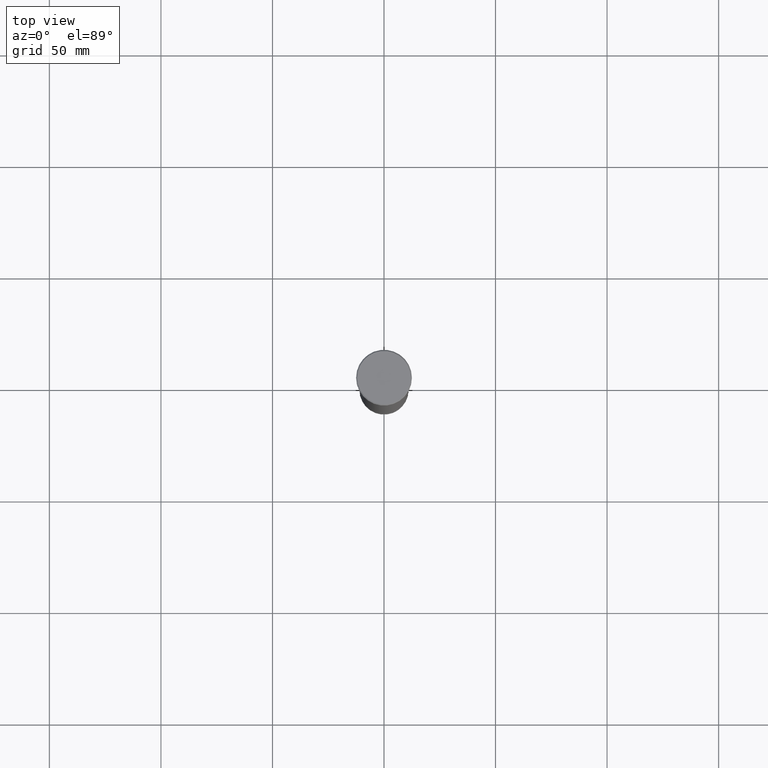
[diagram: clean part render]
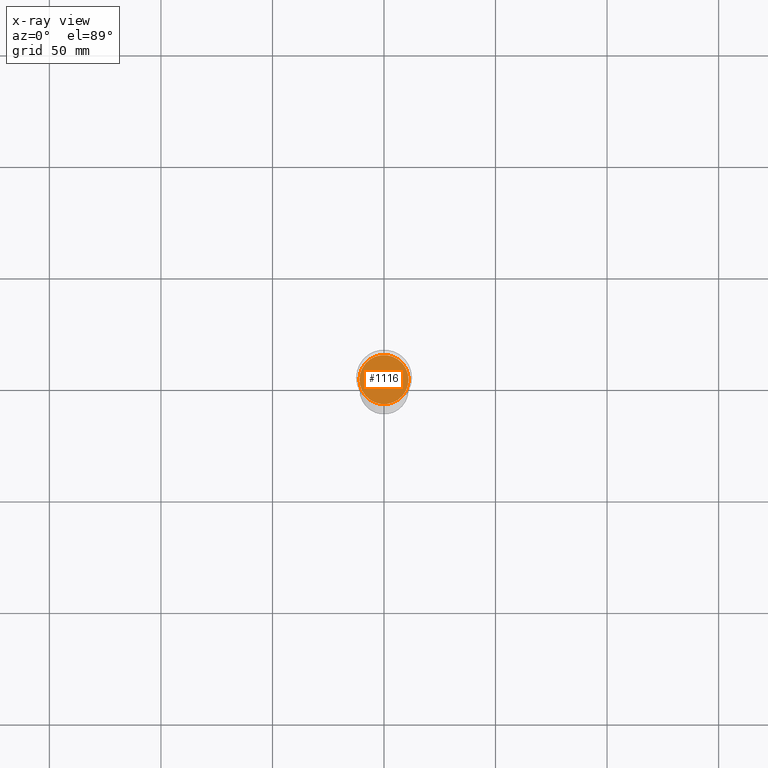
[diagram: x-ray — body ghosted, one internal face saturated and labeled with its STEP entity id]
A machine part, top view, then the same camera in x-ray: the body is ghosted and one INTERNAL B-rep face — a face not visible from any outside direction — is saturated and labeled: STEP entity #1116.
In plain terms, the highlighted planar face has unit normal (0, 0, -1).
Its self-contained STEP definition (entity closure, byte-faithful):
#90 = DIRECTION ( 'NONE',  ( 0.000000000000000000, 0.000000000000000000, -1.000000000000000000 ) ) ;
#138 = VERTEX_POINT ( 'NONE', #1001 ) ;
#162 = CARTESIAN_POINT ( 'NONE',  ( -11.00000000000000000, 1.347111479062088405E-15, -52.00000000000000000 ) ) ;
#323 = ORIENTED_EDGE ( 'NONE', *, *, #1034, .T. ) ;
#354 = EDGE_CURVE ( 'NONE', #527, #138, #886, .T. ) ;
#447 = DIRECTION ( 'NONE',  ( -1.000000000000000000, 0.000000000000000000, -0.000000000000000000 ) ) ;
#493 = DIRECTION ( 'NONE',  ( 0.000000000000000000, 0.000000000000000000, -1.000000000000000000 ) ) ;
#527 = VERTEX_POINT ( 'NONE', #162 ) ;
#575 = DIRECTION ( 'NONE',  ( -1.000000000000000000, 0.000000000000000000, 0.000000000000000000 ) ) ;
#578 = CARTESIAN_POINT ( 'NONE',  ( 0.000000000000000000, 0.000000000000000000, -52.00000000000000000 ) ) ;
#713 = EDGE_LOOP ( 'NONE', ( #323, #893 ) ) ;
#715 = PLANE ( 'NONE',  #1083 ) ;
#723 = AXIS2_PLACEMENT_3D ( 'NONE', #578, #493, #575 ) ;
#814 = DIRECTION ( 'NONE',  ( -1.000000000000000000, 0.000000000000000000, 0.000000000000000000 ) ) ;
#876 = CARTESIAN_POINT ( 'NONE',  ( 0.000000000000000000, 0.000000000000000000, -52.00000000000000000 ) ) ;
#886 = CIRCLE ( 'NONE', #723, 11.00000000000000000 ) ;
#890 = AXIS2_PLACEMENT_3D ( 'NONE', #902, #996, #814 ) ;
#893 = ORIENTED_EDGE ( 'NONE', *, *, #354, .T. ) ;
#902 = CARTESIAN_POINT ( 'NONE',  ( 0.000000000000000000, 0.000000000000000000, -52.00000000000000000 ) ) ;
#975 = FACE_OUTER_BOUND ( 'NONE', #713, .T. ) ;
#996 = DIRECTION ( 'NONE',  ( 0.000000000000000000, 0.000000000000000000, -1.000000000000000000 ) ) ;
#1001 = CARTESIAN_POINT ( 'NONE',  ( 11.00000000000000000, 0.000000000000000000, -52.00000000000000000 ) ) ;
#1034 = EDGE_CURVE ( 'NONE', #138, #527, #1109, .T. ) ;
#1083 = AXIS2_PLACEMENT_3D ( 'NONE', #876, #90, #447 ) ;
#1109 = CIRCLE ( 'NONE', #890, 11.00000000000000000 ) ;
#1116 = ADVANCED_FACE ( 'NONE', ( #975 ), #715, .T. ) ;